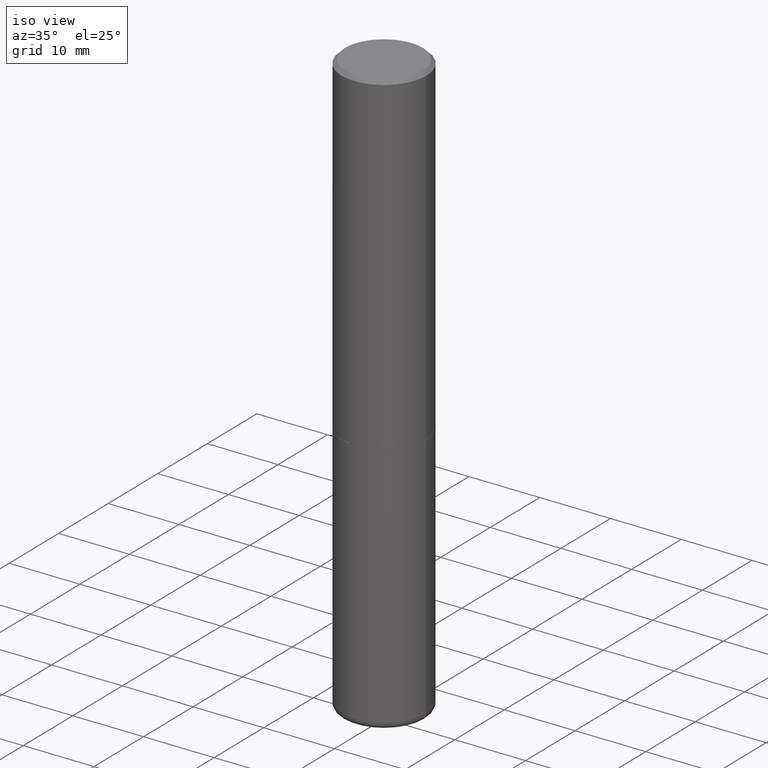
[diagram: clean part render]
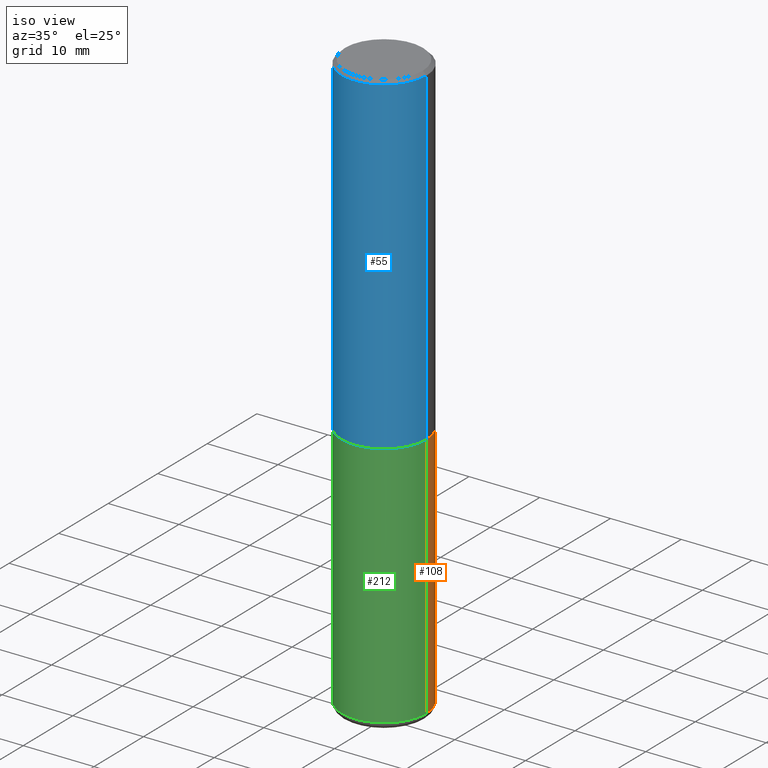
[diagram: same view with three faces highlighted in distinct colors, each labeled with its STEP entity id]
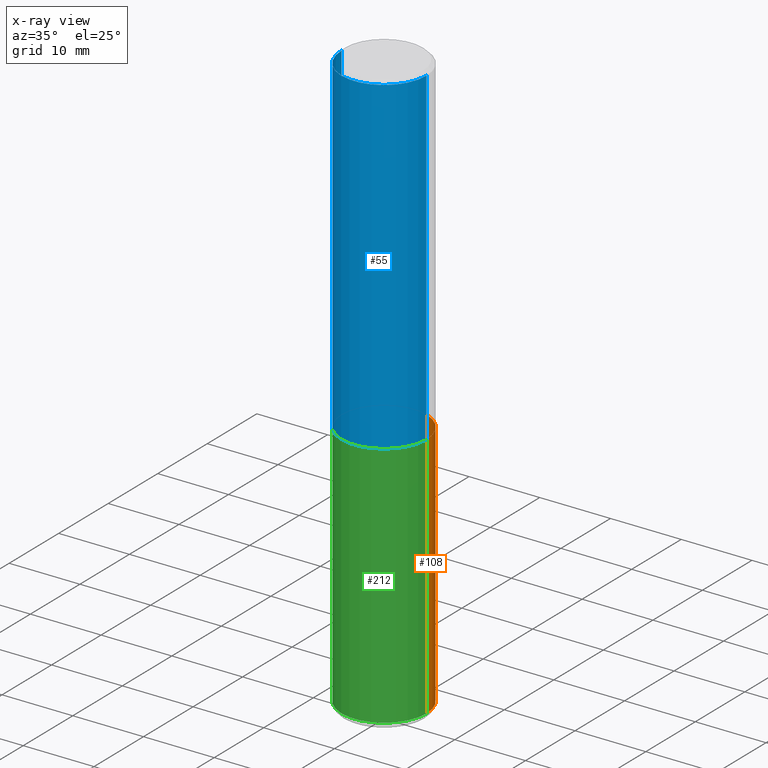
[diagram: x-ray of the same camera — body ghosted, the three highlighted faces saturated]
A machine part, iso view with three faces highlighted in distinct colors.
The next image is the same camera in x-ray (body ghosted, the three faces saturated) — at least one of them is partly hidden behind the body in this view.
Their STEP definitions:

[orange] entity #108 — the highlighted cylindrical surface (partial cylindrical patch) has radius 5.9995 mm, axis along (-0, 0, 1).
#11 = VERTEX_POINT ( 'NONE', #233 ) ;
#22 = CARTESIAN_POINT ( 'NONE',  ( 7.894706947007477118E-29, -1.127154920618732880E-14, -3.228299999999999947 ) ) ;
#24 = ORIENTED_EDGE ( 'NONE', *, *, #396, .F. ) ;
#28 = LINE ( 'NONE', #155, #354 ) ;
#48 = CIRCLE ( 'NONE', #193, 0.2361999999999999933 ) ;
#56 = ORIENTED_EDGE ( 'NONE', *, *, #158, .T. ) ;
#77 = VERTEX_POINT ( 'NONE', #156 ) ;
#95 = VECTOR ( 'NONE', #228, 39.37007874015748143 ) ;
#108 = ADVANCED_FACE ( 'NONE', ( #134 ), #357, .T. ) ;
#134 = FACE_OUTER_BOUND ( 'NONE', #368, .T. ) ;
#155 = CARTESIAN_POINT ( 'NONE',  ( -0.2361999999999999933, 1.678301941865356591E-15, -1.161852468318208757E-29 ) ) ;
#156 = CARTESIAN_POINT ( 'NONE',  ( 0.2361999999999999933, -8.110012853864854101E-15, -1.850400000000000267 ) ) ;
#158 = EDGE_CURVE ( 'NONE', #11, #202, #201, .T. ) ;
#172 = DIRECTION ( 'NONE',  ( 1.000000000000000000, -6.982962677686265133E-15, 0.000000000000000000 ) ) ;
#175 = CARTESIAN_POINT ( 'NONE',  ( 0.2361999999999999933, -1.649375784469496131E-15, 1.151752954443000088E-29 ) ) ;
#183 = ORIENTED_EDGE ( 'NONE', *, *, #192, .F. ) ;
#192 = EDGE_CURVE ( 'NONE', #77, #369, #48, .T. ) ;
#193 = AXIS2_PLACEMENT_3D ( 'NONE', #298, #405, #402 ) ;
#201 = CIRCLE ( 'NONE', #305, 0.2361999999999999933 ) ;
#202 = VERTEX_POINT ( 'NONE', #232 ) ;
#228 = DIRECTION ( 'NONE',  ( -2.445468806185136877E-29, 3.491481338843145188E-15, 1.000000000000000000 ) ) ;
#232 = CARTESIAN_POINT ( 'NONE',  ( -0.2362000000000000210, -9.593247264321970832E-15, -3.228299999999999947 ) ) ;
#233 = CARTESIAN_POINT ( 'NONE',  ( 0.2362000000000000210, -1.292092499065682375E-14, -3.228299999999999947 ) ) ;
#258 = CARTESIAN_POINT ( 'NONE',  ( 0.000000000000000000, 0.000000000000000000, 0.000000000000000000 ) ) ;
#268 = EDGE_CURVE ( 'NONE', #202, #369, #28, .T. ) ;
#279 = AXIS2_PLACEMENT_3D ( 'NONE', #258, #370, #307 ) ;
#297 = CARTESIAN_POINT ( 'NONE',  ( -0.2361999999999999933, -7.187791195925986796E-15, -1.850400000000000267 ) ) ;
#298 = CARTESIAN_POINT ( 'NONE',  ( 4.525095478964977394E-29, -6.460637069395357576E-15, -1.850400000000000267 ) ) ;
#305 = AXIS2_PLACEMENT_3D ( 'NONE', #22, #397, #172 ) ;
#307 = DIRECTION ( 'NONE',  ( 1.000000000000000000, -6.982962677686266711E-15, 4.876176775795936353E-29 ) ) ;
#354 = VECTOR ( 'NONE', #382, 39.37007874015748143 ) ;
#357 = CYLINDRICAL_SURFACE ( 'NONE', #279, 0.2361999999999999933 ) ;
#368 = EDGE_LOOP ( 'NONE', ( #56, #378, #183, #24 ) ) ;
#369 = VERTEX_POINT ( 'NONE', #297 ) ;
#370 = DIRECTION ( 'NONE',  ( -2.445468806185136597E-29, 3.491481338843145583E-15, 1.000000000000000000 ) ) ;
#378 = ORIENTED_EDGE ( 'NONE', *, *, #268, .T. ) ;
#382 = DIRECTION ( 'NONE',  ( -2.445468806185136877E-29, 3.491481338843145188E-15, 1.000000000000000000 ) ) ;
#394 = LINE ( 'NONE', #175, #95 ) ;
#396 = EDGE_CURVE ( 'NONE', #11, #77, #394, .T. ) ;
#397 = DIRECTION ( 'NONE',  ( -2.445468806185136597E-29, 3.491481338843145583E-15, 1.000000000000000000 ) ) ;
#402 = DIRECTION ( 'NONE',  ( 1.000000000000000000, -6.982962677686269077E-15, 0.000000000000000000 ) ) ;
#405 = DIRECTION ( 'NONE',  ( -2.445468806185136597E-29, 3.491481338843145583E-15, 1.000000000000000000 ) ) ;

[blue] entity #55 — the highlighted cylindrical surface (partial cylindrical patch) has radius 5.9995 mm, axis along (-0, 0, 1).
#3 = DIRECTION ( 'NONE',  ( -2.445468806185136597E-29, 3.491481338843145583E-15, 1.000000000000000000 ) ) ;
#4 = DIRECTION ( 'NONE',  ( 1.000000000000000000, -6.982962677686266711E-15, 0.000000000000000000 ) ) ;
#9 = CARTESIAN_POINT ( 'NONE',  ( 0.2362000000000002153, -8.106521372526011094E-15, -1.849400000000000155 ) ) ;
#13 = CARTESIAN_POINT ( 'NONE',  ( -0.2362000000000002431, -1.585185665551328595E-15, -1.849400000000000155 ) ) ;
#26 = ORIENTED_EDGE ( 'NONE', *, *, #42, .T. ) ;
#42 = EDGE_CURVE ( 'NONE', #333, #276, #176, .T. ) ;
#45 = CARTESIAN_POINT ( 'NONE',  ( 0.000000000000000000, 0.000000000000000000, 0.000000000000000000 ) ) ;
#54 = VERTEX_POINT ( 'NONE', #199 ) ;
#55 = ADVANCED_FACE ( 'NONE', ( #332 ), #408, .T. ) ;
#63 = CARTESIAN_POINT ( 'NONE',  ( 4.890937612370285420E-31, -6.982962677686308865E-17, -0.02000000000000005246 ) ) ;
#82 = ORIENTED_EDGE ( 'NONE', *, *, #104, .F. ) ;
#85 = AXIS2_PLACEMENT_3D ( 'NONE', #107, #211, #152 ) ;
#93 = EDGE_CURVE ( 'NONE', #276, #118, #387, .T. ) ;
#104 = EDGE_CURVE ( 'NONE', #54, #118, #160, .T. ) ;
#107 = CARTESIAN_POINT ( 'NONE',  ( 4.522650010158792351E-29, -6.457145588056513780E-15, -1.849400000000000155 ) ) ;
#111 = LINE ( 'NONE', #235, #128 ) ;
#112 = EDGE_LOOP ( 'NONE', ( #243, #26, #278, #82 ) ) ;
#118 = VERTEX_POINT ( 'NONE', #395 ) ;
#128 = VECTOR ( 'NONE', #206, 39.37007874015748143 ) ;
#136 = VECTOR ( 'NONE', #418, 39.37007874015748143 ) ;
#147 = DIRECTION ( 'NONE',  ( -2.445468806185136597E-29, 3.491481338843145583E-15, 1.000000000000000000 ) ) ;
#152 = DIRECTION ( 'NONE',  ( 1.000000000000000000, -6.982962677686266711E-15, 0.000000000000000000 ) ) ;
#160 = CIRCLE ( 'NONE', #186, 0.2361999999999999655 ) ;
#176 = CIRCLE ( 'NONE', #85, 0.2362000000000002153 ) ;
#186 = AXIS2_PLACEMENT_3D ( 'NONE', #63, #3, #4 ) ;
#199 = CARTESIAN_POINT ( 'NONE',  ( -0.2361999999999999655, 1.579546157692632833E-15, -0.02000000000000005246 ) ) ;
#206 = DIRECTION ( 'NONE',  ( -2.445468806185136877E-29, 3.491481338843145188E-15, 1.000000000000000000 ) ) ;
#211 = DIRECTION ( 'NONE',  ( -2.445468806185136597E-29, 3.491481338843145583E-15, 1.000000000000000000 ) ) ;
#235 = CARTESIAN_POINT ( 'NONE',  ( -0.2362000000000000766, 1.678301941865357183E-15, -1.161852468318209177E-29 ) ) ;
#243 = ORIENTED_EDGE ( 'NONE', *, *, #246, .F. ) ;
#246 = EDGE_CURVE ( 'NONE', #333, #54, #111, .T. ) ;
#270 = DIRECTION ( 'NONE',  ( 1.000000000000000000, -6.982962677686266711E-15, 4.876176775795935793E-29 ) ) ;
#276 = VERTEX_POINT ( 'NONE', #9 ) ;
#278 = ORIENTED_EDGE ( 'NONE', *, *, #93, .T. ) ;
#289 = CARTESIAN_POINT ( 'NONE',  ( 0.2362000000000000766, -1.649375784469496722E-15, 1.151752954443000368E-29 ) ) ;
#303 = AXIS2_PLACEMENT_3D ( 'NONE', #45, #147, #270 ) ;
#332 = FACE_OUTER_BOUND ( 'NONE', #112, .T. ) ;
#333 = VERTEX_POINT ( 'NONE', #13 ) ;
#387 = LINE ( 'NONE', #289, #136 ) ;
#395 = CARTESIAN_POINT ( 'NONE',  ( 0.2361999999999999655, -1.690279253850498574E-15, -0.02000000000000005246 ) ) ;
#408 = CYLINDRICAL_SURFACE ( 'NONE', #303, 0.2362000000000000766 ) ;
#418 = DIRECTION ( 'NONE',  ( -2.445468806185136877E-29, 3.491481338843145188E-15, 1.000000000000000000 ) ) ;

[green] entity #212 — the highlighted cylindrical surface (partial cylindrical patch) has radius 5.9995 mm, axis along (-0, 0, 1).
#11 = VERTEX_POINT ( 'NONE', #233 ) ;
#19 = AXIS2_PLACEMENT_3D ( 'NONE', #323, #37, #294 ) ;
#28 = LINE ( 'NONE', #155, #354 ) ;
#37 = DIRECTION ( 'NONE',  ( -2.445468806185136597E-29, 3.491481338843145583E-15, 1.000000000000000000 ) ) ;
#41 = CARTESIAN_POINT ( 'NONE',  ( 7.894706947007477118E-29, -1.127154920618732880E-14, -3.228299999999999947 ) ) ;
#71 = AXIS2_PLACEMENT_3D ( 'NONE', #41, #198, #106 ) ;
#77 = VERTEX_POINT ( 'NONE', #156 ) ;
#86 = ORIENTED_EDGE ( 'NONE', *, *, #195, .T. ) ;
#95 = VECTOR ( 'NONE', #228, 39.37007874015748143 ) ;
#106 = DIRECTION ( 'NONE',  ( 1.000000000000000000, -6.982962677686265133E-15, 0.000000000000000000 ) ) ;
#124 = EDGE_CURVE ( 'NONE', #369, #77, #248, .T. ) ;
#154 = ORIENTED_EDGE ( 'NONE', *, *, #396, .T. ) ;
#155 = CARTESIAN_POINT ( 'NONE',  ( -0.2361999999999999933, 1.678301941865356591E-15, -1.161852468318208757E-29 ) ) ;
#156 = CARTESIAN_POINT ( 'NONE',  ( 0.2361999999999999933, -8.110012853864854101E-15, -1.850400000000000267 ) ) ;
#169 = DIRECTION ( 'NONE',  ( 1.000000000000000000, -6.982962677686269077E-15, 0.000000000000000000 ) ) ;
#174 = AXIS2_PLACEMENT_3D ( 'NONE', #261, #331, #169 ) ;
#175 = CARTESIAN_POINT ( 'NONE',  ( 0.2361999999999999933, -1.649375784469496131E-15, 1.151752954443000088E-29 ) ) ;
#195 = EDGE_CURVE ( 'NONE', #202, #11, #253, .T. ) ;
#198 = DIRECTION ( 'NONE',  ( -2.445468806185136597E-29, 3.491481338843145583E-15, 1.000000000000000000 ) ) ;
#202 = VERTEX_POINT ( 'NONE', #232 ) ;
#212 = ADVANCED_FACE ( 'NONE', ( #292 ), #237, .T. ) ;
#215 = EDGE_LOOP ( 'NONE', ( #234, #86, #154, #236 ) ) ;
#228 = DIRECTION ( 'NONE',  ( -2.445468806185136877E-29, 3.491481338843145188E-15, 1.000000000000000000 ) ) ;
#232 = CARTESIAN_POINT ( 'NONE',  ( -0.2362000000000000210, -9.593247264321970832E-15, -3.228299999999999947 ) ) ;
#233 = CARTESIAN_POINT ( 'NONE',  ( 0.2362000000000000210, -1.292092499065682375E-14, -3.228299999999999947 ) ) ;
#234 = ORIENTED_EDGE ( 'NONE', *, *, #268, .F. ) ;
#236 = ORIENTED_EDGE ( 'NONE', *, *, #124, .F. ) ;
#237 = CYLINDRICAL_SURFACE ( 'NONE', #19, 0.2361999999999999933 ) ;
#248 = CIRCLE ( 'NONE', #174, 0.2361999999999999933 ) ;
#253 = CIRCLE ( 'NONE', #71, 0.2361999999999999933 ) ;
#261 = CARTESIAN_POINT ( 'NONE',  ( 4.525095478964977394E-29, -6.460637069395357576E-15, -1.850400000000000267 ) ) ;
#268 = EDGE_CURVE ( 'NONE', #202, #369, #28, .T. ) ;
#292 = FACE_OUTER_BOUND ( 'NONE', #215, .T. ) ;
#294 = DIRECTION ( 'NONE',  ( 1.000000000000000000, -6.982962677686266711E-15, 4.876176775795936353E-29 ) ) ;
#297 = CARTESIAN_POINT ( 'NONE',  ( -0.2361999999999999933, -7.187791195925986796E-15, -1.850400000000000267 ) ) ;
#323 = CARTESIAN_POINT ( 'NONE',  ( 0.000000000000000000, 0.000000000000000000, 0.000000000000000000 ) ) ;
#331 = DIRECTION ( 'NONE',  ( -2.445468806185136597E-29, 3.491481338843145583E-15, 1.000000000000000000 ) ) ;
#354 = VECTOR ( 'NONE', #382, 39.37007874015748143 ) ;
#369 = VERTEX_POINT ( 'NONE', #297 ) ;
#382 = DIRECTION ( 'NONE',  ( -2.445468806185136877E-29, 3.491481338843145188E-15, 1.000000000000000000 ) ) ;
#394 = LINE ( 'NONE', #175, #95 ) ;
#396 = EDGE_CURVE ( 'NONE', #11, #77, #394, .T. ) ;